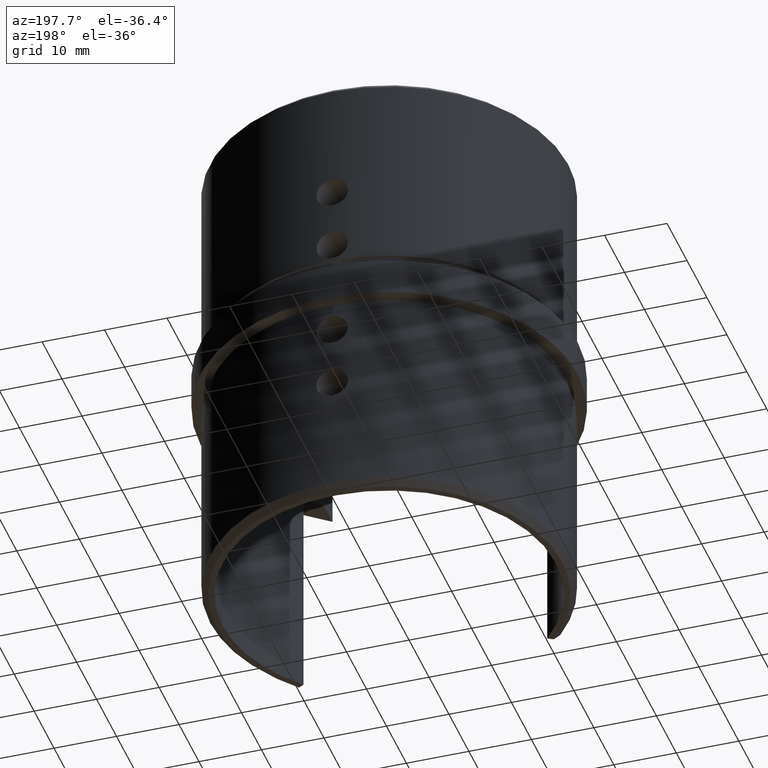
[diagram: clean part render]
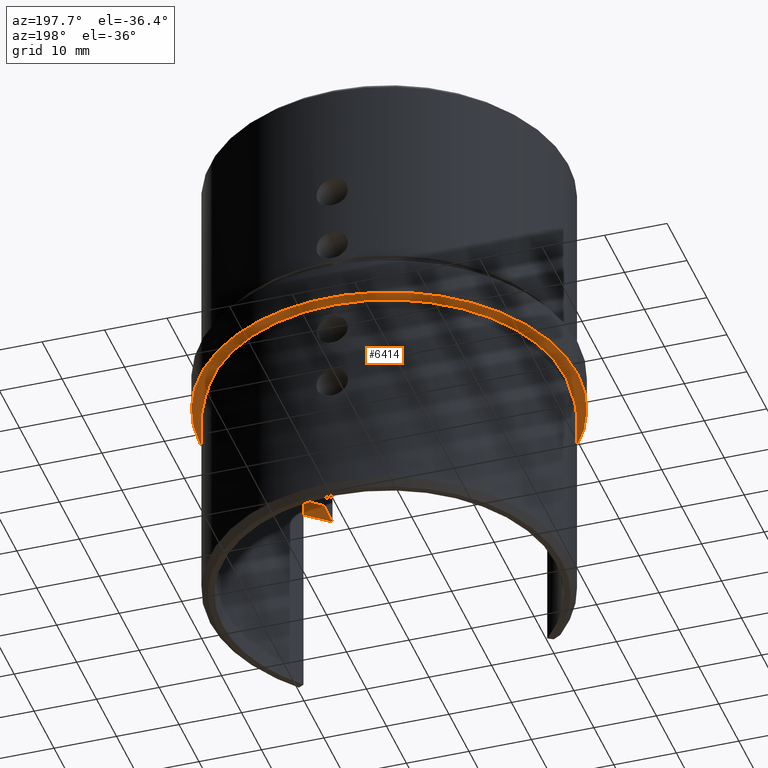
[diagram: same view with one face highlighted and labeled with its STEP entity id]
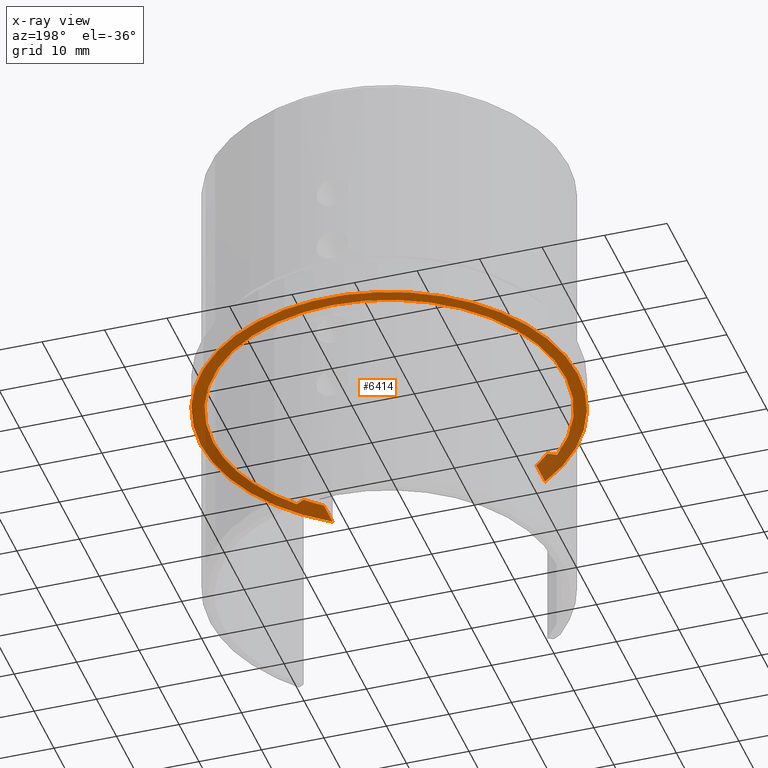
[diagram: x-ray of the same camera — body ghosted, the highlighted face saturated]
A machine part, auxiliary view. The second image highlights one B-rep face of the part: STEP entity #6414.
The next image is the same camera in x-ray: the body ghosted, the highlighted face saturated — about 26% of this face is hidden behind the body in this view.
In plain terms, the highlighted planar face has unit normal (0, 0, 1).
Its self-contained STEP definition (entity closure, byte-faithful):
#77 = AXIS2_PLACEMENT_3D ( 'NONE', #15982, #760, #15920 ) ;
#228 = ORIENTED_EDGE ( 'NONE', *, *, #16139, .T. ) ;
#275 = DIRECTION ( 'NONE',  ( 0.8660254037844362651, 0.5000000000000041078, 0.000000000000000000 ) ) ;
#287 = CIRCLE ( 'NONE', #5824, 30.15000000000000213 ) ;
#325 = DIRECTION ( 'NONE',  ( 0.000000000000000000, 0.000000000000000000, 1.000000000000000000 ) ) ;
#671 = CIRCLE ( 'NONE', #9553, 26.65000000000000213 ) ;
#760 = DIRECTION ( 'NONE',  ( -0.000000000000000000, -0.000000000000000000, -1.000000000000000000 ) ) ;
#1228 = AXIS2_PLACEMENT_3D ( 'NONE', #8474, #8529, #14609 ) ;
#1236 = LINE ( 'NONE', #7995, #9776 ) ;
#1381 = ORIENTED_EDGE ( 'NONE', *, *, #12946, .T. ) ;
#1581 = CARTESIAN_POINT ( 'NONE',  ( 0.000000000000000000, 0.000000000000000000, -3.000000000000000000 ) ) ;
#1851 = CARTESIAN_POINT ( 'NONE',  ( -30.15000000000000213, 0.000000000000000000, -3.000000000000000000 ) ) ;
#1952 = VERTEX_POINT ( 'NONE', #2101 ) ;
#2101 = CARTESIAN_POINT ( 'NONE',  ( 17.00000000000000711, -20.52370580572621606, -3.000000000000000000 ) ) ;
#2393 = ORIENTED_EDGE ( 'NONE', *, *, #14583, .T. ) ;
#2435 = CARTESIAN_POINT ( 'NONE',  ( 17.00000000000000355, -24.90025100275095582, -3.000000000000000000 ) ) ;
#2551 = DIRECTION ( 'NONE',  ( 0.8660254037844369313, -0.5000000000000029976, 0.000000000000000000 ) ) ;
#2839 = CARTESIAN_POINT ( 'NONE',  ( -20.83116986194002607, -18.93369647435496717, -3.000000000000000000 ) ) ;
#2984 = EDGE_CURVE ( 'NONE', #15135, #14401, #13735, .T. ) ;
#3038 = AXIS2_PLACEMENT_3D ( 'NONE', #13010, #5421, #14299 ) ;
#3072 = CIRCLE ( 'NONE', #77, 26.65000000000000213 ) ;
#3151 = EDGE_CURVE ( 'NONE', #12855, #15397, #11225, .T. ) ;
#3171 = CARTESIAN_POINT ( 'NONE',  ( 0.000000000000000000, 28.15000000000000213, -3.000000000000000000 ) ) ;
#3214 = ORIENTED_EDGE ( 'NONE', *, *, #7204, .F. ) ;
#3521 = CARTESIAN_POINT ( 'NONE',  ( 0.000000000000000000, 0.000000000000000000, -3.000000000000000000 ) ) ;
#3709 = VECTOR ( 'NONE', #2551, 1000.000000000000114 ) ;
#4025 = CARTESIAN_POINT ( 'NONE',  ( -19.49999999999999289, -18.16514519622676005, -3.000000000000000000 ) ) ;
#4056 = DIRECTION ( 'NONE',  ( 0.000000000000000000, 1.000000000000000000, 0.000000000000000000 ) ) ;
#4221 = CARTESIAN_POINT ( 'NONE',  ( -21.27411917348713644, -19.18943337861405141, -3.000000000000000000 ) ) ;
#4523 = AXIS2_PLACEMENT_3D ( 'NONE', #9843, #12268, #5843 ) ;
#4671 = EDGE_CURVE ( 'NONE', #15397, #9121, #8149, .T. ) ;
#4793 = LINE ( 'NONE', #4221, #6401 ) ;
#5076 = CARTESIAN_POINT ( 'NONE',  ( -17.00000000000000000, -20.52370580572621961, -3.000000000000000000 ) ) ;
#5105 = LINE ( 'NONE', #10146, #3709 ) ;
#5170 = DIRECTION ( 'NONE',  ( -0.000000000000000000, -0.000000000000000000, 1.000000000000000000 ) ) ;
#5223 = CARTESIAN_POINT ( 'NONE',  ( 20.83116986194003317, -18.93369647435496006, -3.000000000000000000 ) ) ;
#5302 = FACE_OUTER_BOUND ( 'NONE', #13707, .T. ) ;
#5421 = DIRECTION ( 'NONE',  ( 0.000000000000000000, 0.000000000000000000, 1.000000000000000000 ) ) ;
#5554 = DIRECTION ( 'NONE',  ( 1.000000000000000000, 0.000000000000000000, 0.000000000000000000 ) ) ;
#5606 = ORIENTED_EDGE ( 'NONE', *, *, #8705, .F. ) ;
#5763 = VERTEX_POINT ( 'NONE', #2839 ) ;
#5824 = AXIS2_PLACEMENT_3D ( 'NONE', #8325, #10963, #9639 ) ;
#5843 = DIRECTION ( 'NONE',  ( 0.000000000000000000, 1.000000000000000000, 0.000000000000000000 ) ) ;
#6149 = DIRECTION ( 'NONE',  ( 0.000000000000000000, 1.000000000000000000, 0.000000000000000000 ) ) ;
#6357 = CARTESIAN_POINT ( 'NONE',  ( 28.15000000000000213, 0.000000000000000000, -3.000000000000000000 ) ) ;
#6401 = VECTOR ( 'NONE', #275, 1000.000000000000114 ) ;
#6414 = ADVANCED_FACE ( 'NONE', ( #5302 ), #8375, .F. ) ;
#6477 = CIRCLE ( 'NONE', #6665, 30.15000000000000213 ) ;
#6665 = AXIS2_PLACEMENT_3D ( 'NONE', #9330, #325, #5554 ) ;
#6931 = ORIENTED_EDGE ( 'NONE', *, *, #2984, .F. ) ;
#7204 = EDGE_CURVE ( 'NONE', #16157, #15135, #6477, .T. ) ;
#7442 = EDGE_CURVE ( 'NONE', #1952, #16157, #9851, .T. ) ;
#7580 = ORIENTED_EDGE ( 'NONE', *, *, #7442, .F. ) ;
#7899 = ORIENTED_EDGE ( 'NONE', *, *, #12617, .F. ) ;
#7995 = CARTESIAN_POINT ( 'NONE',  ( -17.00000000000000000, -24.90025100275095582, -3.000000000000000000 ) ) ;
#8132 = ORIENTED_EDGE ( 'NONE', *, *, #10678, .F. ) ;
#8149 = CIRCLE ( 'NONE', #15281, 28.15000000000000213 ) ;
#8325 = CARTESIAN_POINT ( 'NONE',  ( 0.000000000000000000, 0.000000000000000000, -3.000000000000000000 ) ) ;
#8375 = PLANE ( 'NONE',  #1228 ) ;
#8378 = CIRCLE ( 'NONE', #12993, 28.15000000000000213 ) ;
#8474 = CARTESIAN_POINT ( 'NONE',  ( 0.000000000000000000, 0.000000000000000000, -3.000000000000000000 ) ) ;
#8529 = DIRECTION ( 'NONE',  ( 0.000000000000000000, 0.000000000000000000, 1.000000000000000000 ) ) ;
#8636 = VERTEX_POINT ( 'NONE', #15532 ) ;
#8705 = EDGE_CURVE ( 'NONE', #14401, #8636, #287, .T. ) ;
#8716 = DIRECTION ( 'NONE',  ( -0.000000000000000000, -0.000000000000000000, 1.000000000000000000 ) ) ;
#9121 = VERTEX_POINT ( 'NONE', #3171 ) ;
#9330 = CARTESIAN_POINT ( 'NONE',  ( 0.000000000000000000, 0.000000000000000000, -3.000000000000000000 ) ) ;
#9461 = EDGE_CURVE ( 'NONE', #13801, #14862, #671, .T. ) ;
#9464 = VECTOR ( 'NONE', #11295, 1000.000000000000000 ) ;
#9553 = AXIS2_PLACEMENT_3D ( 'NONE', #3521, #12388, #11293 ) ;
#9560 = VERTEX_POINT ( 'NONE', #16249 ) ;
#9639 = DIRECTION ( 'NONE',  ( 1.000000000000000000, 0.000000000000000000, 0.000000000000000000 ) ) ;
#9776 = VECTOR ( 'NONE', #10412, 1000.000000000000000 ) ;
#9843 = CARTESIAN_POINT ( 'NONE',  ( 0.000000000000000000, 0.000000000000000000, -3.000000000000000000 ) ) ;
#9851 = LINE ( 'NONE', #10373, #9464 ) ;
#10146 = CARTESIAN_POINT ( 'NONE',  ( 19.50000000000000355, -18.16514519622676005, -3.000000000000000000 ) ) ;
#10373 = CARTESIAN_POINT ( 'NONE',  ( 17.00000000000000355, -20.52370580572621606, -3.000000000000000000 ) ) ;
#10412 = DIRECTION ( 'NONE',  ( 0.000000000000000000, 1.000000000000000000, 0.000000000000000000 ) ) ;
#10678 = EDGE_CURVE ( 'NONE', #9560, #1952, #3072, .T. ) ;
#10963 = DIRECTION ( 'NONE',  ( 0.000000000000000000, 0.000000000000000000, 1.000000000000000000 ) ) ;
#11225 = CIRCLE ( 'NONE', #4523, 28.15000000000000213 ) ;
#11293 = DIRECTION ( 'NONE',  ( 1.000000000000000000, 0.000000000000000000, 0.000000000000000000 ) ) ;
#11295 = DIRECTION ( 'NONE',  ( 0.000000000000000000, -1.000000000000000000, 0.000000000000000000 ) ) ;
#12268 = DIRECTION ( 'NONE',  ( -0.000000000000000000, -0.000000000000000000, 1.000000000000000000 ) ) ;
#12388 = DIRECTION ( 'NONE',  ( -0.000000000000000000, -0.000000000000000000, -1.000000000000000000 ) ) ;
#12617 = EDGE_CURVE ( 'NONE', #8636, #13801, #1236, .T. ) ;
#12855 = VERTEX_POINT ( 'NONE', #5223 ) ;
#12946 = EDGE_CURVE ( 'NONE', #5763, #14862, #4793, .T. ) ;
#12993 = AXIS2_PLACEMENT_3D ( 'NONE', #15052, #8716, #6149 ) ;
#13010 = CARTESIAN_POINT ( 'NONE',  ( 0.000000000000000000, 0.000000000000000000, -3.000000000000000000 ) ) ;
#13363 = ORIENTED_EDGE ( 'NONE', *, *, #3151, .T. ) ;
#13605 = ORIENTED_EDGE ( 'NONE', *, *, #4671, .T. ) ;
#13707 = EDGE_LOOP ( 'NONE', ( #13363, #13605, #2393, #1381, #14983, #7899, #5606, #6931, #3214, #7580, #8132, #228 ) ) ;
#13735 = CIRCLE ( 'NONE', #3038, 30.15000000000000213 ) ;
#13801 = VERTEX_POINT ( 'NONE', #5076 ) ;
#14299 = DIRECTION ( 'NONE',  ( 1.000000000000000000, 0.000000000000000000, 0.000000000000000000 ) ) ;
#14401 = VERTEX_POINT ( 'NONE', #1851 ) ;
#14583 = EDGE_CURVE ( 'NONE', #9121, #5763, #8378, .T. ) ;
#14609 = DIRECTION ( 'NONE',  ( 1.000000000000000000, 0.000000000000000000, -0.000000000000000000 ) ) ;
#14862 = VERTEX_POINT ( 'NONE', #4025 ) ;
#14983 = ORIENTED_EDGE ( 'NONE', *, *, #9461, .F. ) ;
#15052 = CARTESIAN_POINT ( 'NONE',  ( 0.000000000000000000, 0.000000000000000000, -3.000000000000000000 ) ) ;
#15135 = VERTEX_POINT ( 'NONE', #15308 ) ;
#15281 = AXIS2_PLACEMENT_3D ( 'NONE', #1581, #5170, #4056 ) ;
#15308 = CARTESIAN_POINT ( 'NONE',  ( 30.15000000000000213, 3.692310099429270397E-15, -3.000000000000000000 ) ) ;
#15397 = VERTEX_POINT ( 'NONE', #6357 ) ;
#15532 = CARTESIAN_POINT ( 'NONE',  ( -17.00000000000000000, -24.90025100275095582, -3.000000000000000000 ) ) ;
#15920 = DIRECTION ( 'NONE',  ( 1.000000000000000000, 0.000000000000000000, 0.000000000000000000 ) ) ;
#15982 = CARTESIAN_POINT ( 'NONE',  ( 0.000000000000000000, 0.000000000000000000, -3.000000000000000000 ) ) ;
#16139 = EDGE_CURVE ( 'NONE', #9560, #12855, #5105, .T. ) ;
#16157 = VERTEX_POINT ( 'NONE', #2435 ) ;
#16249 = CARTESIAN_POINT ( 'NONE',  ( 19.50000000000000355, -18.16514519622676005, -3.000000000000000000 ) ) ;